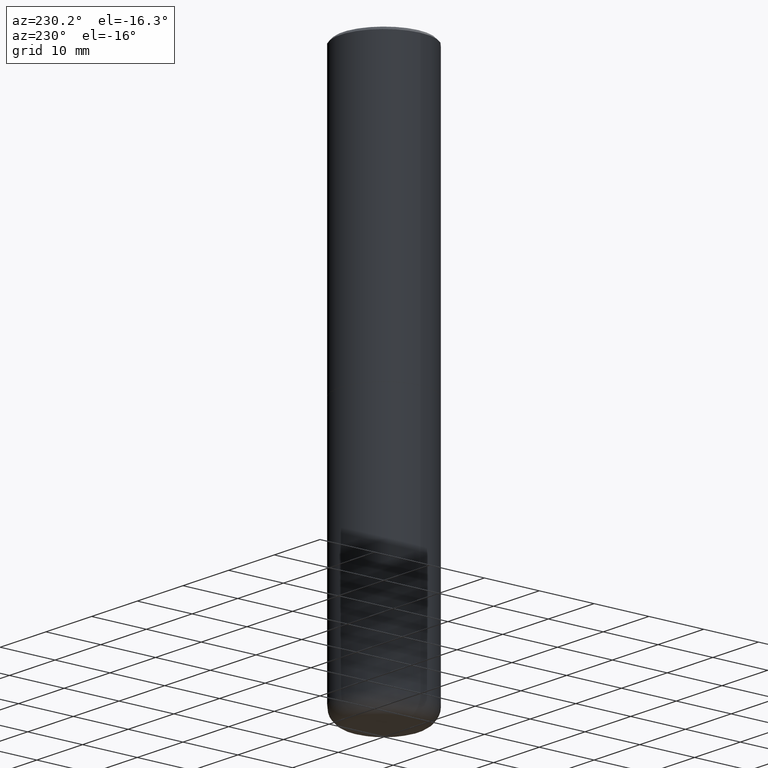
[diagram: clean part render]
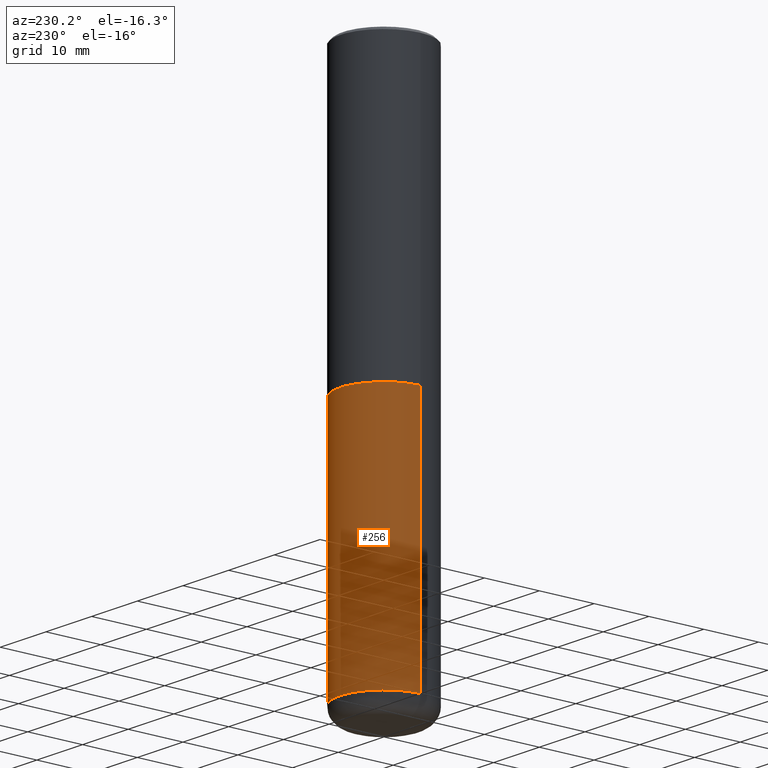
[diagram: same view with one face highlighted and labeled with its STEP entity id]
A machine part, auxiliary view. The second image highlights one B-rep face of the part: STEP entity #256.
In plain terms, the highlighted cylindrical surface (partial cylindrical patch) has radius 7.9997 mm, axis along (-0, 0, 1).
Its self-contained STEP definition (entity closure, byte-faithful):
#12 = VECTOR ( 'NONE', #303, 39.37007874015748143 ) ;
#16 = ORIENTED_EDGE ( 'NONE', *, *, #281, .T. ) ;
#20 = LINE ( 'NONE', #283, #341 ) ;
#33 = CARTESIAN_POINT ( 'NONE',  ( 0.000000000000000000, 0.000000000000000000, 0.000000000000000000 ) ) ;
#63 = CARTESIAN_POINT ( 'NONE',  ( 0.3149500000000000077, -9.347044692216978073E-15, -2.047199999999999687 ) ) ;
#69 = CARTESIAN_POINT ( 'NONE',  ( 9.339000823940418668E-29, -1.333361808490808928E-14, -3.818900000000000183 ) ) ;
#79 = CIRCLE ( 'NONE', #367, 0.3149500000000000077 ) ;
#80 = VERTEX_POINT ( 'NONE', #148 ) ;
#82 = EDGE_CURVE ( 'NONE', #396, #224, #20, .T. ) ;
#101 = ORIENTED_EDGE ( 'NONE', *, *, #414, .T. ) ;
#109 = EDGE_LOOP ( 'NONE', ( #16, #101, #144, #130 ) ) ;
#127 = FACE_OUTER_BOUND ( 'NONE', #109, .T. ) ;
#128 = AXIS2_PLACEMENT_3D ( 'NONE', #33, #293, #267 ) ;
#130 = ORIENTED_EDGE ( 'NONE', *, *, #82, .F. ) ;
#132 = VERTEX_POINT ( 'NONE', #295 ) ;
#136 = DIRECTION ( 'NONE',  ( 1.000000000000000000, -6.982962677686269866E-15, 0.000000000000000000 ) ) ;
#144 = ORIENTED_EDGE ( 'NONE', *, *, #380, .F. ) ;
#148 = CARTESIAN_POINT ( 'NONE',  ( -0.3149500000000000077, -8.002834994617451969E-15, -2.047199999999999687 ) ) ;
#198 = CYLINDRICAL_SURFACE ( 'NONE', #128, 0.3149500000000000077 ) ;
#201 = CIRCLE ( 'NONE', #238, 0.3149500000000000077 ) ;
#211 = CARTESIAN_POINT ( 'NONE',  ( 0.3149500000000000077, -1.553290218024537915E-14, -3.818900000000000183 ) ) ;
#224 = VERTEX_POINT ( 'NONE', #63 ) ;
#238 = AXIS2_PLACEMENT_3D ( 'NONE', #329, #302, #136 ) ;
#242 = DIRECTION ( 'NONE',  ( 1.000000000000000000, -6.982962677686269866E-15, 0.000000000000000000 ) ) ;
#256 = ADVANCED_FACE ( 'NONE', ( #127 ), #198, .T. ) ;
#261 = DIRECTION ( 'NONE',  ( -2.445468806185136597E-29, 3.491481338843145583E-15, 1.000000000000000000 ) ) ;
#267 = DIRECTION ( 'NONE',  ( 1.000000000000000000, -6.982962677686266711E-15, 4.876176775795936353E-29 ) ) ;
#281 = EDGE_CURVE ( 'NONE', #396, #132, #79, .T. ) ;
#283 = CARTESIAN_POINT ( 'NONE',  ( 0.3149500000000000077, -2.199284095337289871E-15, 1.535751875536930130E-29 ) ) ;
#286 = DIRECTION ( 'NONE',  ( -2.445468806185136877E-29, 3.491481338843145188E-15, 1.000000000000000000 ) ) ;
#293 = DIRECTION ( 'NONE',  ( -2.445468806185136597E-29, 3.491481338843145583E-15, 1.000000000000000000 ) ) ;
#295 = CARTESIAN_POINT ( 'NONE',  ( -0.3149500000000000077, -1.109576373863165330E-14, -3.818900000000000183 ) ) ;
#302 = DIRECTION ( 'NONE',  ( -2.445468806185136597E-29, 3.491481338843145583E-15, 1.000000000000000000 ) ) ;
#303 = DIRECTION ( 'NONE',  ( -2.445468806185136877E-29, 3.491481338843145188E-15, 1.000000000000000000 ) ) ;
#310 = CARTESIAN_POINT ( 'NONE',  ( -0.3149500000000000077, 2.237854346276435590E-15, -1.549218606675782676E-29 ) ) ;
#329 = CARTESIAN_POINT ( 'NONE',  ( 5.006363740022211120E-29, -7.147760596879686624E-15, -2.047199999999999687 ) ) ;
#330 = LINE ( 'NONE', #310, #12 ) ;
#341 = VECTOR ( 'NONE', #286, 39.37007874015748143 ) ;
#367 = AXIS2_PLACEMENT_3D ( 'NONE', #69, #261, #242 ) ;
#380 = EDGE_CURVE ( 'NONE', #224, #80, #201, .T. ) ;
#396 = VERTEX_POINT ( 'NONE', #211 ) ;
#414 = EDGE_CURVE ( 'NONE', #132, #80, #330, .T. ) ;